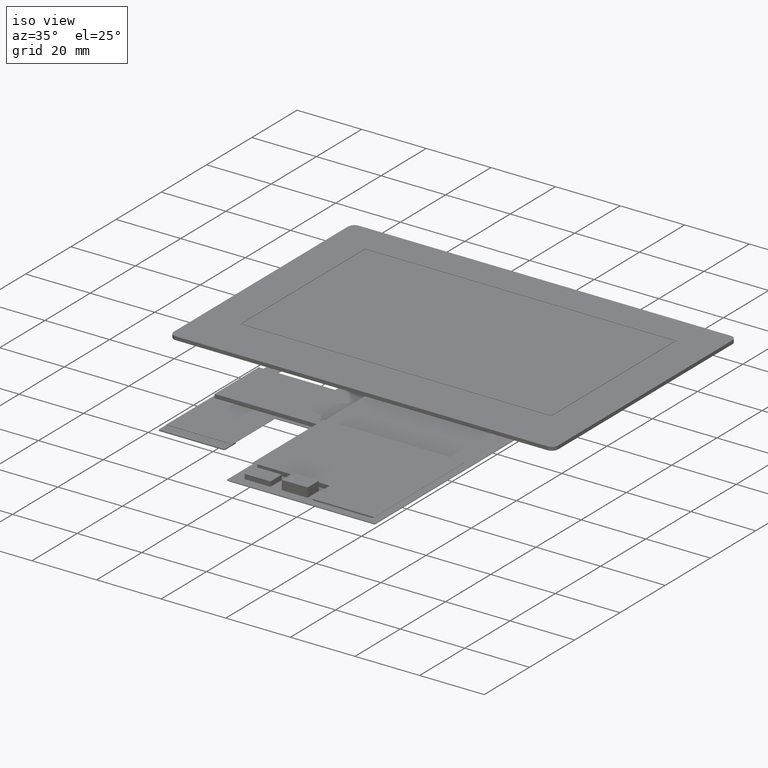
[diagram: clean part render]
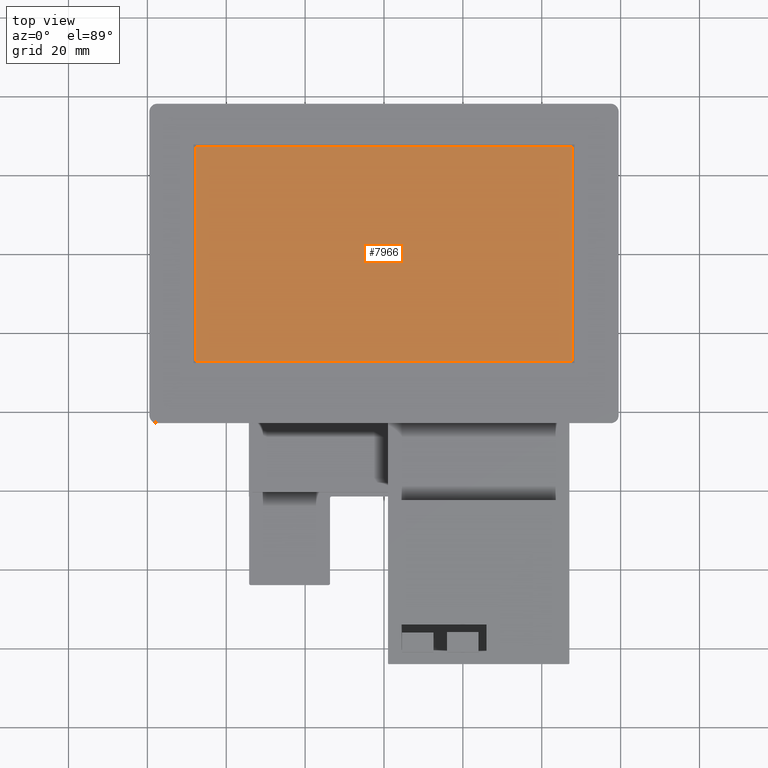
[diagram: tour spotlight — one face highlighted and labeled with its STEP entity id]
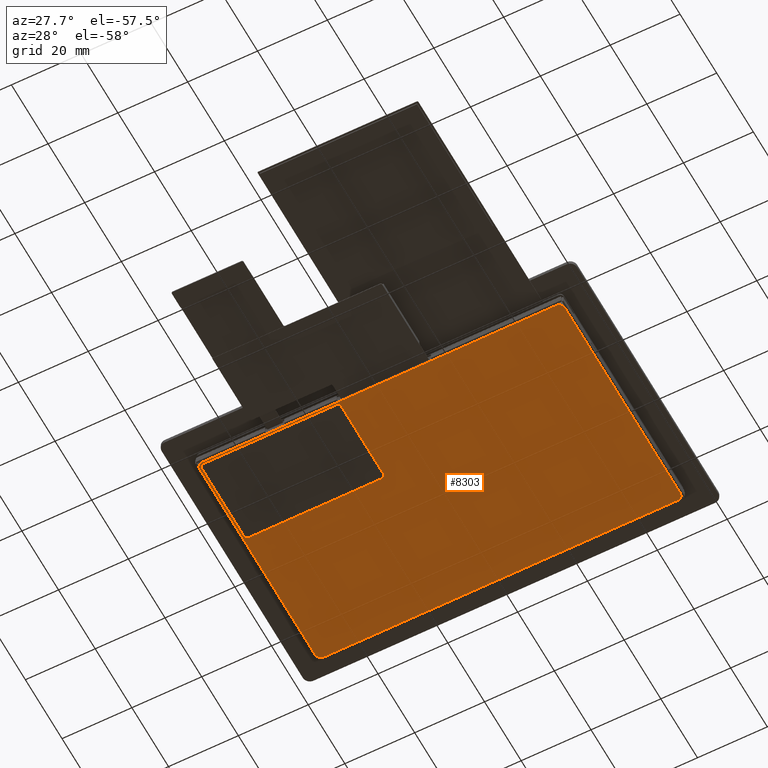
[diagram: tour spotlight — one face highlighted and labeled with its STEP entity id]
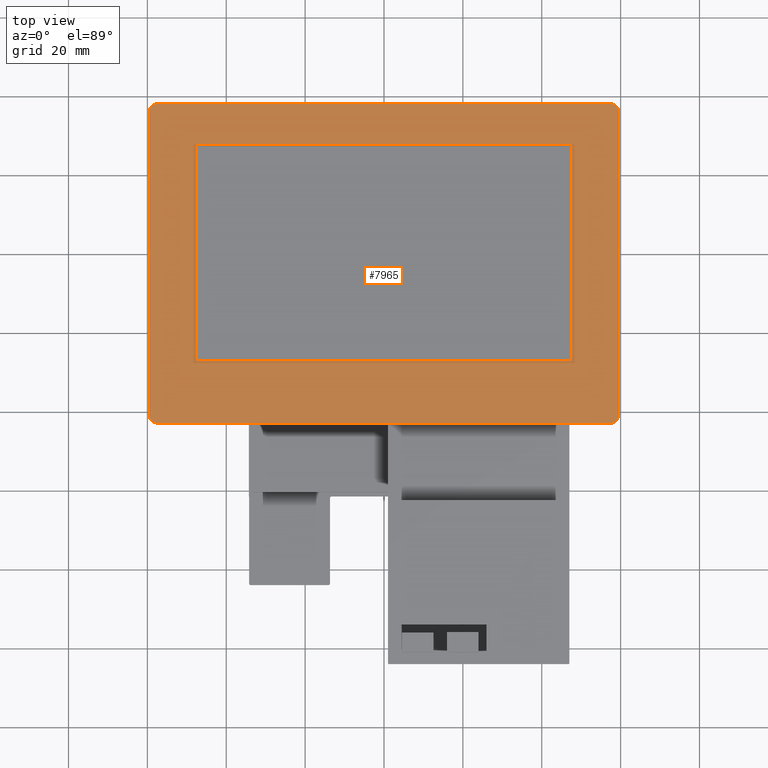
[diagram: tour spotlight — one face highlighted and labeled with its STEP entity id]
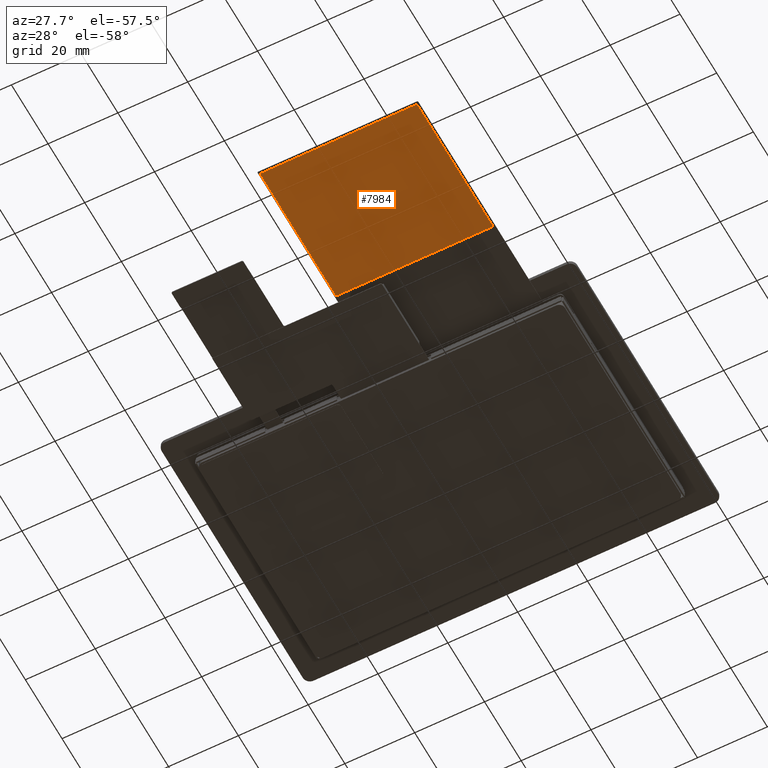
[diagram: tour spotlight — one face highlighted and labeled with its STEP entity id]
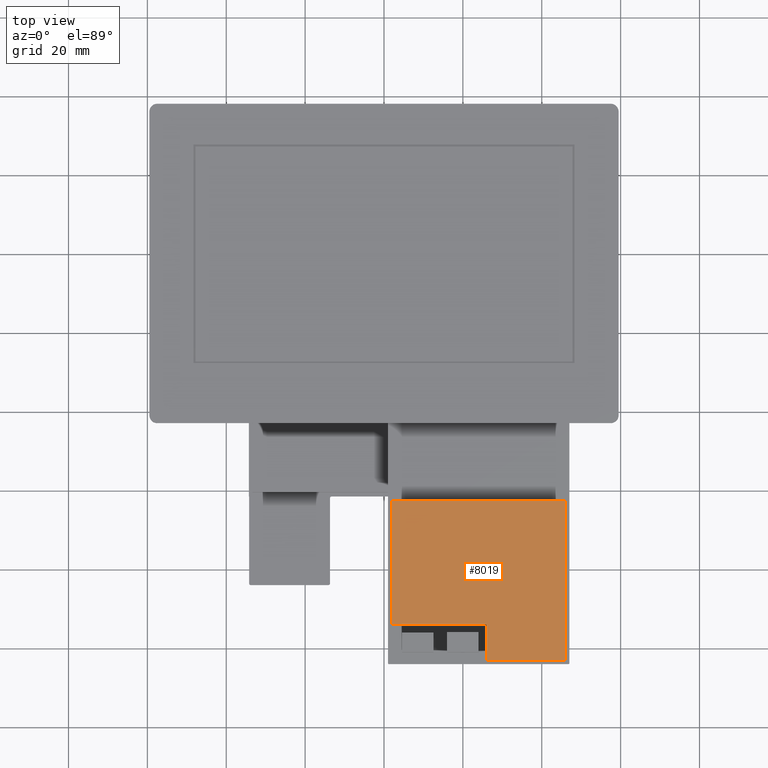
[diagram: tour spotlight — one face highlighted and labeled with its STEP entity id]
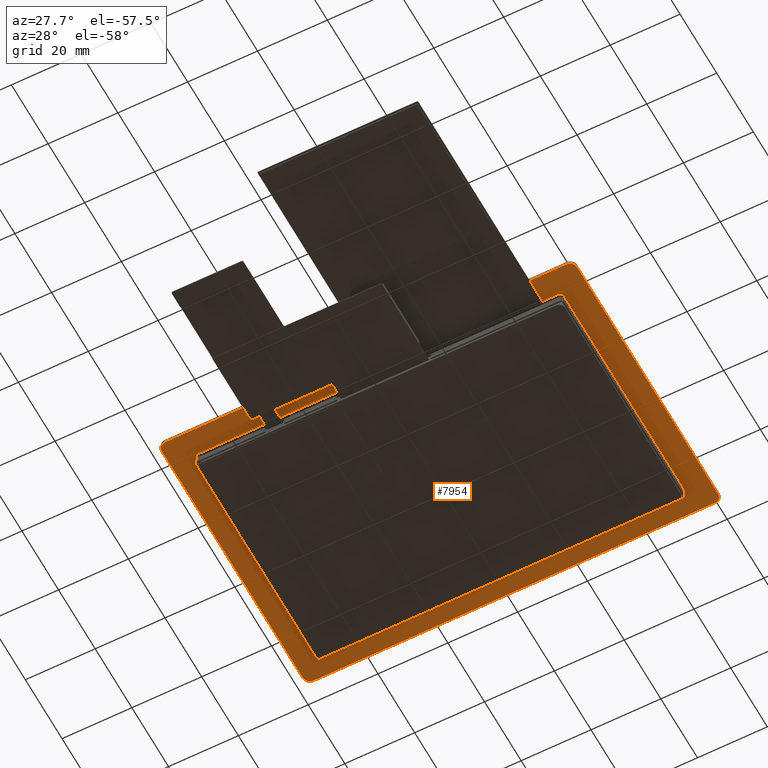
[diagram: tour spotlight — one face highlighted and labeled with its STEP entity id]
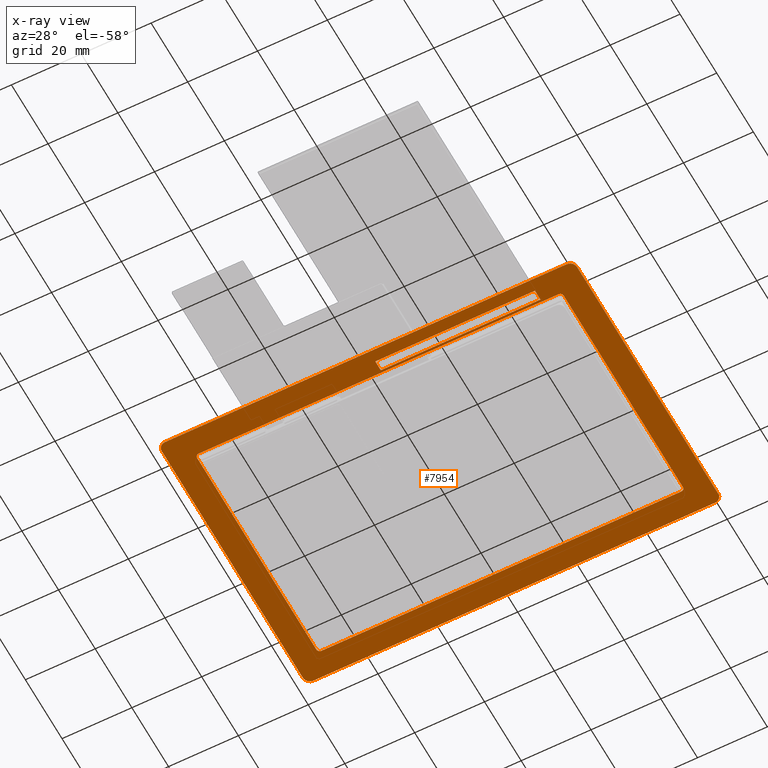
[diagram: x-ray of the same camera — body ghosted, this tour face saturated]
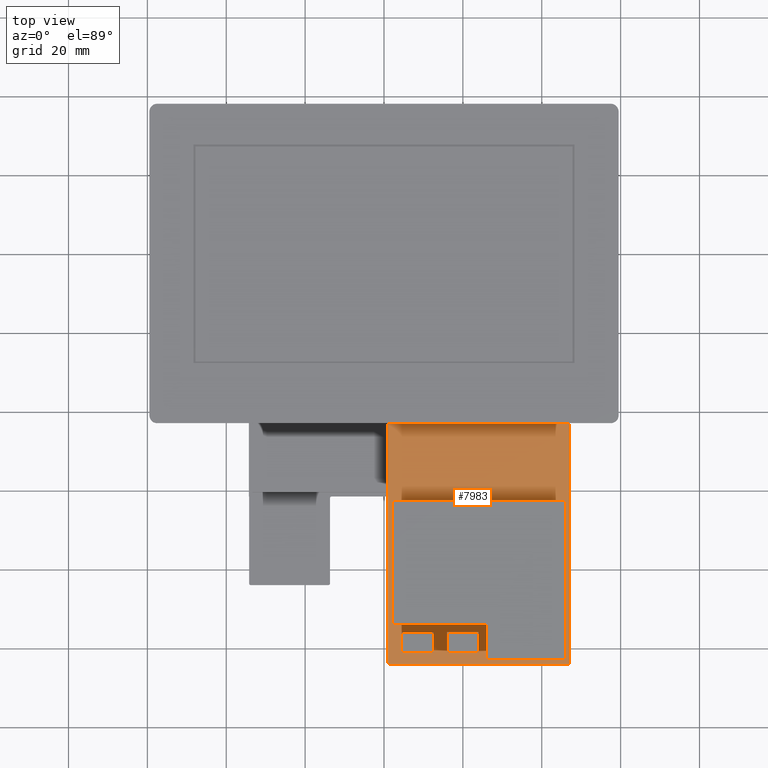
[diagram: tour spotlight — one face highlighted and labeled with its STEP entity id]
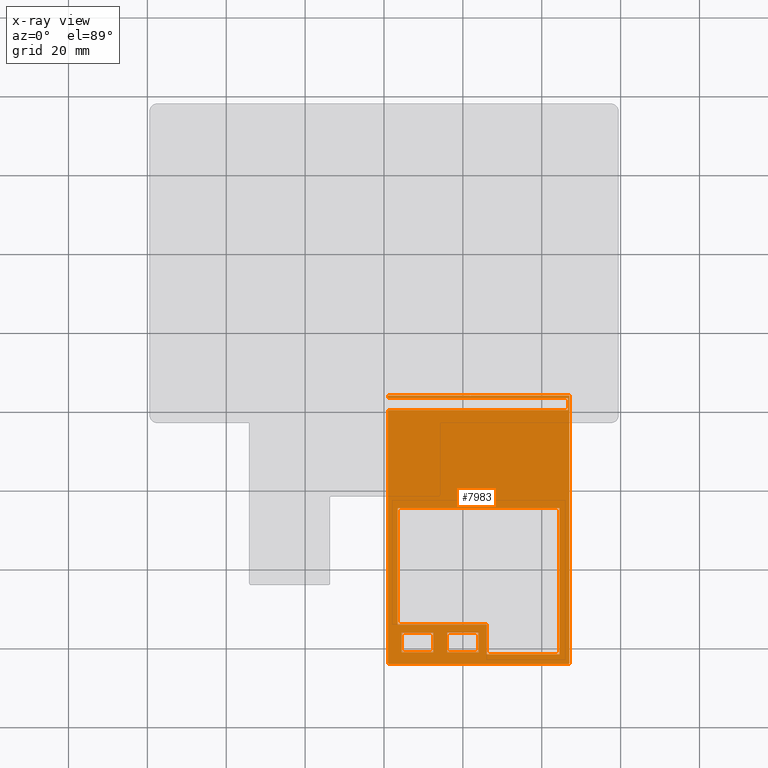
[diagram: x-ray of the same camera — body ghosted, this tour face saturated]
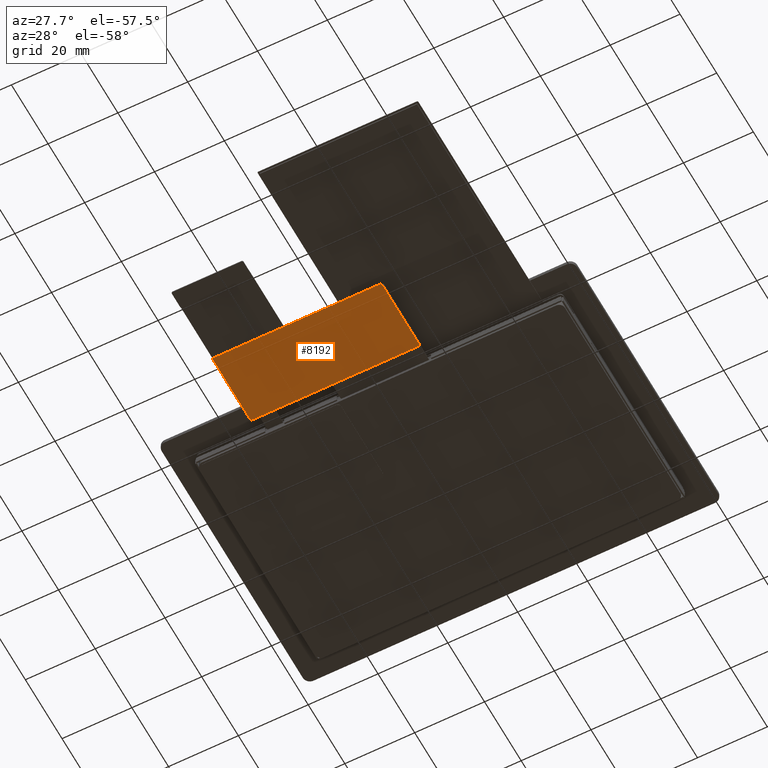
[diagram: tour spotlight — one face highlighted and labeled with its STEP entity id]
A machine part: a face-by-face anatomy tour. The part has 425 B-rep faces; the first image is the clean iso view, then the 8 largest visible faces are spotlighted one at a time (largest first), each with its STEP entity span.

Face 1 — top view, entity #7966. In plain terms, the highlighted planar face has unit normal (0, 0, 1).
Definition (entity closure, byte-faithful):
#108=PLANE('',#8442);
#485=FACE_OUTER_BOUND('',#916,.T.);
#916=EDGE_LOOP('',(#5729,#5730,#5731,#5732));
#1413=LINE('',#11184,#2491);
#1417=LINE('',#11192,#2495);
#1420=LINE('',#11198,#2498);
#1423=LINE('',#11203,#2501);
#2491=VECTOR('',#9071,10.);
#2495=VECTOR('',#9077,10.);
#2498=VECTOR('',#9082,10.);
#2501=VECTOR('',#9087,10.);
#3646=VERTEX_POINT('',#11182);
#3647=VERTEX_POINT('',#11183);
#3650=VERTEX_POINT('',#11191);
#3652=VERTEX_POINT('',#11197);
#4441=EDGE_CURVE('',#3646,#3647,#1413,.T.);
#4445=EDGE_CURVE('',#3650,#3646,#1417,.T.);
#4448=EDGE_CURVE('',#3652,#3650,#1420,.T.);
#4451=EDGE_CURVE('',#3647,#3652,#1423,.T.);
#5729=ORIENTED_EDGE('',*,*,#4441,.T.);
#5730=ORIENTED_EDGE('',*,*,#4451,.T.);
#5731=ORIENTED_EDGE('',*,*,#4448,.T.);
#5732=ORIENTED_EDGE('',*,*,#4445,.T.);
#7966=ADVANCED_FACE('',(#485),#108,.T.);
#8442=AXIS2_PLACEMENT_3D('',#11247,#9125,#9126);
#9071=DIRECTION('',(-1.08226954829212E-15,1.,0.));
#9077=DIRECTION('',(1.,1.22156980232288E-15,0.));
#9082=DIRECTION('',(1.24535776344088E-15,-1.,0.));
#9087=DIRECTION('',(-1.,-1.08226954829212E-15,0.));
#9125=DIRECTION('center_axis',(0.,0.,1.));
#9126=DIRECTION('ref_axis',(1.,1.08226954829212E-15,0.));
#11182=CARTESIAN_POINT('',(47.8199999999987,-27.2299999999985,0.));
#11183=CARTESIAN_POINT('',(47.8199999999986,27.2300000000015,0.));
#11184=CARTESIAN_POINT('',(47.8199999999987,-35.0499999999985,0.));
#11191=CARTESIAN_POINT('',(-47.8200000000013,-27.2299999999986,0.));
#11192=CARTESIAN_POINT('',(-23.9100000000013,-27.2299999999986,0.));
#11197=CARTESIAN_POINT('',(-47.8200000000014,27.2300000000014,0.));
#11198=CARTESIAN_POINT('',(-47.8200000000013,-7.81999999999858,0.));
#11203=CARTESIAN_POINT('',(23.9099999999986,27.2300000000015,0.));
#11247=CARTESIAN_POINT('Origin',(-1.28730359705287E-12,-42.8699999999985,
0.));

Face 2 — auxiliary view, entity #8303. In plain terms, the highlighted planar face has unit normal (0, 0, 1).
Definition (entity closure, byte-faithful):
#65=FACE_BOUND('',#1265,.T.);
#402=PLANE('',#8822);
#822=FACE_OUTER_BOUND('',#1264,.T.);
#1264=EDGE_LOOP('',(#7612,#7613,#7614,#7615,#7616,#7617,#7618,#7619));
#1265=EDGE_LOOP('',(#7620,#7621,#7622,#7623,#7624,#7625,#7626,#7627));
#1329=LINE('',#10981,#2407);
#1335=LINE('',#10996,#2413);
#1337=LINE('',#11002,#2415);
#1338=LINE('',#11004,#2416);
#2263=LINE('',#13976,#3341);
#2286=LINE('',#14044,#3364);
#2298=LINE('',#14079,#3376);
#2299=LINE('',#14083,#3377);
#2407=VECTOR('',#8901,10.);
#2413=VECTOR('',#8917,10.);
#2415=VECTOR('',#8925,10.);
#2416=VECTOR('',#8928,10.);
#3341=VECTOR('',#10639,101.36);
#3364=VECTOR('',#10704,63.);
#3376=VECTOR('',#10746,63.);
#3377=VECTOR('',#10749,101.36);
#3480=CIRCLE('',#8380,1.);
#3484=CIRCLE('',#8387,1.);
#3485=CIRCLE('',#8389,1.);
#3486=CIRCLE('',#8392,1.);
#3541=CIRCLE('',#8789,1.6);
#3556=CIRCLE('',#8823,1.6);
#3557=CIRCLE('',#8824,1.6);
#3558=CIRCLE('',#8825,1.6);
#3563=VERTEX_POINT('',#10960);
#3564=VERTEX_POINT('',#10962);
#3571=VERTEX_POINT('',#10980);
#3572=VERTEX_POINT('',#10984);
#3573=VERTEX_POINT('',#10988);
#3574=VERTEX_POINT('',#10990);
#3575=VERTEX_POINT('',#10994);
#3576=VERTEX_POINT('',#10998);
#4232=VERTEX_POINT('',#13973);
#4233=VERTEX_POINT('',#13975);
#4234=VERTEX_POINT('',#13979);
#4257=VERTEX_POINT('',#14043);
#4264=VERTEX_POINT('',#14076);
#4265=VERTEX_POINT('',#14078);
#4266=VERTEX_POINT('',#14080);
#4267=VERTEX_POINT('',#14082);
#4331=EDGE_CURVE('',#3564,#3563,#3480,.T.);
#4340=EDGE_CURVE('',#3571,#3564,#1329,.T.);
#4342=EDGE_CURVE('',#3572,#3571,#3484,.T.);
#4345=EDGE_CURVE('',#3574,#3573,#3485,.T.);
#4348=EDGE_CURVE('',#3573,#3575,#1335,.T.);
#4350=EDGE_CURVE('',#3575,#3576,#3486,.T.);
#4351=EDGE_CURVE('',#3576,#3572,#1337,.T.);
#4352=EDGE_CURVE('',#3563,#3574,#1338,.T.);
#5356=EDGE_CURVE('',#4232,#4233,#2263,.T.);
#5358=EDGE_CURVE('',#4234,#4233,#3541,.T.);
#5390=EDGE_CURVE('',#4234,#4257,#2286,.T.);
#5406=EDGE_CURVE('',#4232,#4264,#3556,.T.);
#5407=EDGE_CURVE('',#4265,#4264,#2298,.T.);
#5408=EDGE_CURVE('',#4265,#4266,#3557,.T.);
#5409=EDGE_CURVE('',#4267,#4266,#2299,.T.);
#5410=EDGE_CURVE('',#4267,#4257,#3558,.T.);
#7612=ORIENTED_EDGE('',*,*,#5358,.T.);
#7613=ORIENTED_EDGE('',*,*,#5356,.F.);
#7614=ORIENTED_EDGE('',*,*,#5406,.T.);
#7615=ORIENTED_EDGE('',*,*,#5407,.F.);
#7616=ORIENTED_EDGE('',*,*,#5408,.T.);
#7617=ORIENTED_EDGE('',*,*,#5409,.F.);
#7618=ORIENTED_EDGE('',*,*,#5410,.T.);
#7619=ORIENTED_EDGE('',*,*,#5390,.F.);
#7620=ORIENTED_EDGE('',*,*,#4345,.T.);
#7621=ORIENTED_EDGE('',*,*,#4348,.T.);
#7622=ORIENTED_EDGE('',*,*,#4350,.T.);
#7623=ORIENTED_EDGE('',*,*,#4351,.T.);
#7624=ORIENTED_EDGE('',*,*,#4342,.T.);
#7625=ORIENTED_EDGE('',*,*,#4340,.T.);
#7626=ORIENTED_EDGE('',*,*,#4331,.T.);
#7627=ORIENTED_EDGE('',*,*,#4352,.T.);
#8303=ADVANCED_FACE('',(#822,#65),#402,.F.);
#8380=AXIS2_PLACEMENT_3D('',#10963,#8884,#8885);
#8387=AXIS2_PLACEMENT_3D('',#10985,#8905,#8906);
#8389=AXIS2_PLACEMENT_3D('',#10991,#8911,#8912);
#8392=AXIS2_PLACEMENT_3D('',#11000,#8921,#8922);
#8789=AXIS2_PLACEMENT_3D('',#13980,#10643,#10644);
#8822=AXIS2_PLACEMENT_3D('',#14075,#10742,#10743);
#8823=AXIS2_PLACEMENT_3D('',#14077,#10744,#10745);
#8824=AXIS2_PLACEMENT_3D('',#14081,#10747,#10748);
#8825=AXIS2_PLACEMENT_3D('',#14084,#10750,#10751);
#8884=DIRECTION('center_axis',(0.,0.,1.));
#8885=DIRECTION('ref_axis',(-0.707106781186547,-0.707106781186548,0.));
#8901=DIRECTION('',(1.22108700651375E-15,-1.,0.));
#8905=DIRECTION('center_axis',(0.,0.,1.));
#8906=DIRECTION('ref_axis',(-0.707106781186548,0.707106781186547,0.));
#8911=DIRECTION('center_axis',(0.,0.,1.));
#8912=DIRECTION('ref_axis',(0.70710678118655,-0.707106781186545,0.));
#8917=DIRECTION('',(-5.99362112723661E-16,1.,0.));
#8921=DIRECTION('center_axis',(0.,0.,1.));
#8922=DIRECTION('ref_axis',(0.707106781186547,0.707106781186548,0.));
#8925=DIRECTION('',(-1.,-1.08786024355873E-15,0.));
#8928=DIRECTION('',(1.,8.65815638633699E-16,0.));
#10639=DIRECTION('',(-1.,-8.65815638633699E-16,0.));
#10643=DIRECTION('center_axis',(0.,0.,-1.));
#10644=DIRECTION('ref_axis',(-1.,-8.65815638633699E-16,0.));
#10704=DIRECTION('',(8.65815638633699E-16,-1.,0.));
#10742=DIRECTION('center_axis',(0.,0.,1.));
#10743=DIRECTION('ref_axis',(1.,8.65815638633699E-16,0.));
#10744=DIRECTION('center_axis',(0.,0.,-1.));
#10745=DIRECTION('ref_axis',(-8.65815638633699E-16,1.,0.));
#10746=DIRECTION('',(-8.65815638633699E-16,1.,0.));
#10747=DIRECTION('center_axis',(0.,0.,-1.));
#10748=DIRECTION('ref_axis',(1.,8.65815638633699E-16,0.));
#10749=DIRECTION('',(1.,8.65815638633699E-16,0.));
#10750=DIRECTION('center_axis',(0.,0.,-1.));
#10751=DIRECTION('ref_axis',(8.65815638633699E-16,-1.,0.));
#10960=CARTESIAN_POINT('',(-50.7000000000015,-34.9219999999991,-5.13999999999999));
#10962=CARTESIAN_POINT('',(-51.7000000000015,-33.9219999999991,-5.13999999999999));
#10963=CARTESIAN_POINT('Origin',(-50.7000000000015,-33.9219999999991,-5.13999999999999));
#10980=CARTESIAN_POINT('',(-51.7000000000015,-10.9219999999991,-5.13999999999999));
#10981=CARTESIAN_POINT('',(-51.7000000000015,-6.12199999999911,-5.13999999999999));
#10984=CARTESIAN_POINT('',(-50.7000000000015,-9.9219999999991,-5.13999999999999));
#10985=CARTESIAN_POINT('Origin',(-50.7000000000015,-10.9219999999991,-5.13999999999999));
#10988=CARTESIAN_POINT('',(-11.7000000000015,-33.9219999999991,-5.13999999999999));
#10990=CARTESIAN_POINT('',(-12.7000000000015,-34.9219999999991,-5.13999999999999));
#10991=CARTESIAN_POINT('Origin',(-12.7000000000015,-33.9219999999991,-5.13999999999999));
#10994=CARTESIAN_POINT('',(-11.7000000000015,-10.9219999999991,-5.13999999999999));
#10996=CARTESIAN_POINT('',(-11.7000000000015,-12.3719999999991,-5.13999999999999));
#10998=CARTESIAN_POINT('',(-12.7000000000015,-9.92199999999906,-5.13999999999999));
#11000=CARTESIAN_POINT('Origin',(-12.7000000000015,-10.9219999999991,-5.13999999999999));
#11002=CARTESIAN_POINT('',(-15.8600000000017,-9.92199999999906,-5.13999999999999));
#11004=CARTESIAN_POINT('',(-25.8600000000016,-34.9219999999991,-5.13999999999999));
#13973=CARTESIAN_POINT('',(50.6599999999983,30.778000000001,-5.13999999999999));
#13975=CARTESIAN_POINT('',(-50.7000000000018,30.778000000001,-5.13999999999999));
#13976=CARTESIAN_POINT('',(50.6599999999983,30.778000000001,-5.13999999999999));
#13979=CARTESIAN_POINT('',(-52.3000000000017,29.178000000001,-5.13999999999999));
#13980=CARTESIAN_POINT('Origin',(-50.7000000000018,29.178000000001,-5.13999999999999));
#14043=CARTESIAN_POINT('',(-52.3000000000016,-33.8219999999991,-5.13999999999999));
#14044=CARTESIAN_POINT('',(-52.3000000000017,29.178000000001,-5.13999999999999));
#14075=CARTESIAN_POINT('Origin',(-0.0200000000018008,-2.32199999999906,
-5.13999999999999));
#14076=CARTESIAN_POINT('',(52.2599999999983,29.178000000001,-5.13999999999999));
#14077=CARTESIAN_POINT('Origin',(50.6599999999983,29.178000000001,-5.13999999999999));
#14078=CARTESIAN_POINT('',(52.2599999999983,-33.8219999999991,-5.13999999999999));
#14079=CARTESIAN_POINT('',(52.2599999999983,-33.8219999999991,-5.13999999999999));
#14080=CARTESIAN_POINT('',(50.6599999999983,-35.4219999999991,-5.13999999999999));
#14081=CARTESIAN_POINT('Origin',(50.6599999999983,-33.8219999999991,-5.13999999999999));
#14082=CARTESIAN_POINT('',(-50.7000000000016,-35.4219999999991,-5.13999999999999));
#14083=CARTESIAN_POINT('',(-50.7000000000016,-35.4219999999991,-5.13999999999999));
#14084=CARTESIAN_POINT('Origin',(-50.7000000000016,-33.8219999999991,-5.13999999999999));

Face 3 — top view, entity #7965. In plain terms, the highlighted planar face has unit normal (0, 0, 1).
Definition (entity closure, byte-faithful):
#53=FACE_BOUND('',#915,.T.);
#107=PLANE('',#8437);
#484=FACE_OUTER_BOUND('',#914,.T.);
#914=EDGE_LOOP('',(#5717,#5718,#5719,#5720,#5721,#5722,#5723,#5724));
#915=EDGE_LOOP('',(#5725,#5726,#5727,#5728));
#1425=LINE('',#11208,#2503);
#1429=LINE('',#11216,#2507);
#1432=LINE('',#11222,#2510);
#1435=LINE('',#11227,#2513);
#1437=LINE('',#11235,#2515);
#1438=LINE('',#11239,#2516);
#1439=LINE('',#11243,#2517);
#1440=LINE('',#11246,#2518);
#2503=VECTOR('',#9091,10.);
#2507=VECTOR('',#9097,10.);
#2510=VECTOR('',#9102,10.);
#2513=VECTOR('',#9107,10.);
#2515=VECTOR('',#9115,77.);
#2516=VECTOR('',#9118,115.);
#2517=VECTOR('',#9121,77.);
#2518=VECTOR('',#9124,115.);
#3501=CIRCLE('',#8438,2.);
#3502=CIRCLE('',#8439,2.);
#3503=CIRCLE('',#8440,2.);
#3504=CIRCLE('',#8441,2.);
#3654=VERTEX_POINT('',#11206);
#3655=VERTEX_POINT('',#11207);
#3658=VERTEX_POINT('',#11215);
#3660=VERTEX_POINT('',#11221);
#3662=VERTEX_POINT('',#11231);
#3663=VERTEX_POINT('',#11232);
#3664=VERTEX_POINT('',#11234);
#3665=VERTEX_POINT('',#11236);
#3666=VERTEX_POINT('',#11238);
#3667=VERTEX_POINT('',#11240);
#3668=VERTEX_POINT('',#11242);
#3669=VERTEX_POINT('',#11244);
#4453=EDGE_CURVE('',#3654,#3655,#1425,.T.);
#4457=EDGE_CURVE('',#3658,#3654,#1429,.T.);
#4460=EDGE_CURVE('',#3660,#3658,#1432,.T.);
#4463=EDGE_CURVE('',#3655,#3660,#1435,.T.);
#4465=EDGE_CURVE('',#3662,#3663,#3501,.T.);
#4466=EDGE_CURVE('',#3663,#3664,#1437,.T.);
#4467=EDGE_CURVE('',#3664,#3665,#3502,.T.);
#4468=EDGE_CURVE('',#3665,#3666,#1438,.T.);
#4469=EDGE_CURVE('',#3666,#3667,#3503,.T.);
#4470=EDGE_CURVE('',#3667,#3668,#1439,.T.);
#4471=EDGE_CURVE('',#3668,#3669,#3504,.T.);
#4472=EDGE_CURVE('',#3669,#3662,#1440,.T.);
#5717=ORIENTED_EDGE('',*,*,#4465,.T.);
#5718=ORIENTED_EDGE('',*,*,#4466,.T.);
#5719=ORIENTED_EDGE('',*,*,#4467,.T.);
#5720=ORIENTED_EDGE('',*,*,#4468,.T.);
#5721=ORIENTED_EDGE('',*,*,#4469,.T.);
#5722=ORIENTED_EDGE('',*,*,#4470,.T.);
#5723=ORIENTED_EDGE('',*,*,#4471,.T.);
#5724=ORIENTED_EDGE('',*,*,#4472,.T.);
#5725=ORIENTED_EDGE('',*,*,#4453,.T.);
#5726=ORIENTED_EDGE('',*,*,#4463,.T.);
#5727=ORIENTED_EDGE('',*,*,#4460,.T.);
#5728=ORIENTED_EDGE('',*,*,#4457,.T.);
#7965=ADVANCED_FACE('',(#484,#53),#107,.T.);
#8437=AXIS2_PLACEMENT_3D('',#11230,#9111,#9112);
#8438=AXIS2_PLACEMENT_3D('',#11233,#9113,#9114);
#8439=AXIS2_PLACEMENT_3D('',#11237,#9116,#9117);
#8440=AXIS2_PLACEMENT_3D('',#11241,#9119,#9120);
#8441=AXIS2_PLACEMENT_3D('',#11245,#9122,#9123);
#9091=DIRECTION('',(1.08226954829212E-15,-1.,0.));
#9097=DIRECTION('',(1.,1.08226954829212E-15,0.));
#9102=DIRECTION('',(-1.28245400999879E-15,1.,0.));
#9107=DIRECTION('',(-1.,-1.22012836757505E-15,0.));
#9111=DIRECTION('center_axis',(0.,0.,1.));
#9112=DIRECTION('ref_axis',(1.,1.08226954829212E-15,0.));
#9113=DIRECTION('center_axis',(0.,0.,1.));
#9114=DIRECTION('ref_axis',(1.,1.08226954829212E-15,0.));
#9115=DIRECTION('',(1.08226954829212E-15,-1.,0.));
#9116=DIRECTION('center_axis',(0.,0.,1.));
#9117=DIRECTION('ref_axis',(1.,1.08226954829212E-15,0.));
#9118=DIRECTION('',(1.,1.08226954829212E-15,0.));
#9119=DIRECTION('center_axis',(0.,0.,1.));
#9120=DIRECTION('ref_axis',(1.,1.08226954829212E-15,0.));
#9121=DIRECTION('',(-1.08226954829212E-15,1.,0.));
#9122=DIRECTION('center_axis',(0.,0.,1.));
#9123=DIRECTION('ref_axis',(1.,1.08226954829212E-15,0.));
#9124=DIRECTION('',(-1.,-1.08226954829212E-15,0.));
#11206=CARTESIAN_POINT('',(48.3199999999987,27.7300000000015,0.));
#11207=CARTESIAN_POINT('',(48.3199999999987,-27.7299999999985,0.));
#11208=CARTESIAN_POINT('',(48.3199999999987,-7.56999999999847,0.));
#11215=CARTESIAN_POINT('',(-48.3200000000014,27.7300000000014,0.));
#11216=CARTESIAN_POINT('',(-24.1600000000014,27.7300000000015,0.));
#11221=CARTESIAN_POINT('',(-48.3200000000013,-27.7299999999986,0.));
#11222=CARTESIAN_POINT('',(-48.3200000000013,-35.2999999999986,0.));
#11227=CARTESIAN_POINT('',(24.1599999999987,-27.7299999999985,0.));
#11230=CARTESIAN_POINT('Origin',(-1.28730359705287E-12,-42.8699999999985,
0.));
#11231=CARTESIAN_POINT('',(-57.5000000000014,38.1300000000014,0.));
#11232=CARTESIAN_POINT('',(-59.5000000000014,36.1300000000014,0.));
#11233=CARTESIAN_POINT('Origin',(-57.5000000000014,36.1300000000014,0.));
#11234=CARTESIAN_POINT('',(-59.5000000000013,-40.8699999999986,0.));
#11235=CARTESIAN_POINT('',(-59.5000000000014,36.1300000000014,0.));
#11236=CARTESIAN_POINT('',(-57.5000000000013,-42.8699999999986,0.));
#11237=CARTESIAN_POINT('Origin',(-57.5000000000013,-40.8699999999986,0.));
#11238=CARTESIAN_POINT('',(57.4999999999987,-42.8699999999985,0.));
#11239=CARTESIAN_POINT('',(-57.5000000000013,-42.8699999999986,0.));
#11240=CARTESIAN_POINT('',(59.4999999999987,-40.8699999999985,0.));
#11241=CARTESIAN_POINT('Origin',(57.4999999999987,-40.8699999999985,0.));
#11242=CARTESIAN_POINT('',(59.4999999999986,36.1300000000015,0.));
#11243=CARTESIAN_POINT('',(59.4999999999987,-40.8699999999985,0.));
#11244=CARTESIAN_POINT('',(57.4999999999986,38.1300000000015,0.));
#11245=CARTESIAN_POINT('Origin',(57.4999999999986,36.1300000000015,0.));
#11246=CARTESIAN_POINT('',(57.4999999999986,38.1300000000015,0.));

Face 4 — auxiliary view, entity #7984. In plain terms, the highlighted planar face has unit normal (0, 0, -1).
Definition (entity closure, byte-faithful):
#118=PLANE('',#8463);
#503=FACE_OUTER_BOUND('',#937,.T.);
#937=EDGE_LOOP('',(#5838,#5839,#5840,#5841));
#1480=LINE('',#11333,#2558);
#1481=LINE('',#11335,#2559);
#1482=LINE('',#11337,#2560);
#1483=LINE('',#11338,#2561);
#2558=VECTOR('',#9208,45.);
#2559=VECTOR('',#9209,41.5);
#2560=VECTOR('',#9210,45.);
#2561=VECTOR('',#9211,41.5);
#3693=VERTEX_POINT('',#11331);
#3694=VERTEX_POINT('',#11332);
#3695=VERTEX_POINT('',#11334);
#3696=VERTEX_POINT('',#11336);
#4515=EDGE_CURVE('',#3693,#3694,#1480,.T.);
#4516=EDGE_CURVE('',#3694,#3695,#1481,.T.);
#4517=EDGE_CURVE('',#3695,#3696,#1482,.T.);
#4518=EDGE_CURVE('',#3696,#3693,#1483,.T.);
#5838=ORIENTED_EDGE('',*,*,#4515,.T.);
#5839=ORIENTED_EDGE('',*,*,#4516,.T.);
#5840=ORIENTED_EDGE('',*,*,#4517,.T.);
#5841=ORIENTED_EDGE('',*,*,#4518,.T.);
#7984=ADVANCED_FACE('',(#503),#118,.T.);
#8463=AXIS2_PLACEMENT_3D('',#11330,#9206,#9207);
#9206=DIRECTION('center_axis',(0.,0.,-1.));
#9207=DIRECTION('ref_axis',(-1.,-1.08226954829212E-15,0.));
#9208=DIRECTION('',(1.,1.08226954829212E-15,0.));
#9209=DIRECTION('',(1.08226954829212E-15,-1.,0.));
#9210=DIRECTION('',(-1.,-1.08226954829212E-15,0.));
#9211=DIRECTION('',(-1.08226954829212E-15,1.,0.));
#11330=CARTESIAN_POINT('Origin',(24.0000000000037,-103.469999999996,-1.70999999999999));
#11331=CARTESIAN_POINT('',(1.50000000000368,-61.9699999999961,-1.70999999999999));
#11332=CARTESIAN_POINT('',(46.5000000000037,-61.969999999996,-1.70999999999999));
#11333=CARTESIAN_POINT('',(1.50000000000368,-61.9699999999961,-1.70999999999999));
#11334=CARTESIAN_POINT('',(46.5000000000037,-103.469999999996,-1.70999999999999));
#11335=CARTESIAN_POINT('',(46.5000000000037,-61.969999999996,-1.70999999999999));
#11336=CARTESIAN_POINT('',(1.50000000000373,-103.469999999996,-1.70999999999999));
#11337=CARTESIAN_POINT('',(46.5000000000037,-103.469999999996,-1.70999999999999));
#11338=CARTESIAN_POINT('',(1.50000000000373,-103.469999999996,-1.70999999999999));

Face 5 — top view, entity #8019. In plain terms, the highlighted planar face has unit normal (0, 0, 1).
Definition (entity closure, byte-faithful):
#150=PLANE('',#8501);
#538=FACE_OUTER_BOUND('',#973,.T.);
#973=EDGE_LOOP('',(#5996,#5997,#5998,#5999,#6000,#6001));
#1530=LINE('',#11444,#2608);
#1534=LINE('',#11450,#2612);
#1536=LINE('',#11454,#2614);
#1538=LINE('',#11458,#2616);
#1540=LINE('',#11462,#2618);
#1541=LINE('',#11464,#2619);
#2608=VECTOR('',#9322,9.);
#2612=VECTOR('',#9328,20.);
#2614=VECTOR('',#9332,40.5);
#2616=VECTOR('',#9336,44.);
#2618=VECTOR('',#9340,31.5);
#2619=VECTOR('',#9343,24.);
#3722=VERTEX_POINT('',#11442);
#3723=VERTEX_POINT('',#11443);
#3724=VERTEX_POINT('',#11448);
#3725=VERTEX_POINT('',#11452);
#3726=VERTEX_POINT('',#11456);
#3727=VERTEX_POINT('',#11460);
#4568=EDGE_CURVE('',#3722,#3723,#1530,.T.);
#4572=EDGE_CURVE('',#3723,#3724,#1534,.T.);
#4574=EDGE_CURVE('',#3724,#3725,#1536,.T.);
#4576=EDGE_CURVE('',#3725,#3726,#1538,.T.);
#4578=EDGE_CURVE('',#3726,#3727,#1540,.T.);
#4579=EDGE_CURVE('',#3727,#3722,#1541,.T.);
#5996=ORIENTED_EDGE('',*,*,#4568,.T.);
#5997=ORIENTED_EDGE('',*,*,#4572,.T.);
#5998=ORIENTED_EDGE('',*,*,#4574,.T.);
#5999=ORIENTED_EDGE('',*,*,#4576,.T.);
#6000=ORIENTED_EDGE('',*,*,#4578,.T.);
#6001=ORIENTED_EDGE('',*,*,#4579,.T.);
#8019=ADVANCED_FACE('',(#538),#150,.T.);
#8501=AXIS2_PLACEMENT_3D('',#11465,#9344,#9345);
#9322=DIRECTION('',(1.08226954829212E-15,-1.,0.));
#9328=DIRECTION('',(1.,1.08226954829212E-15,0.));
#9332=DIRECTION('',(-1.08226954829212E-15,1.,0.));
#9336=DIRECTION('',(-1.,-1.08226954829212E-15,0.));
#9340=DIRECTION('',(1.08226954829212E-15,-1.,0.));
#9343=DIRECTION('',(1.,1.08226954829212E-15,0.));
#9344=DIRECTION('center_axis',(0.,0.,1.));
#9345=DIRECTION('ref_axis',(1.,1.08226954829212E-15,0.));
#11442=CARTESIAN_POINT('',(26.0000000000037,-93.969999999996,0.0500000000000078));
#11443=CARTESIAN_POINT('',(26.0000000000037,-102.969999999996,0.0500000000000078));
#11444=CARTESIAN_POINT('',(26.0000000000037,-93.969999999996,0.0500000000000078));
#11448=CARTESIAN_POINT('',(46.0000000000037,-102.969999999996,0.0500000000000078));
#11450=CARTESIAN_POINT('',(26.0000000000037,-102.969999999996,0.0500000000000078));
#11452=CARTESIAN_POINT('',(46.0000000000037,-62.469999999996,0.0500000000000078));
#11454=CARTESIAN_POINT('',(46.0000000000037,-102.969999999996,0.0500000000000078));
#11456=CARTESIAN_POINT('',(2.00000000000368,-62.4699999999961,0.0500000000000078));
#11458=CARTESIAN_POINT('',(46.0000000000037,-62.469999999996,0.0500000000000078));
#11460=CARTESIAN_POINT('',(2.00000000000372,-93.9699999999961,0.0500000000000078));
#11462=CARTESIAN_POINT('',(2.00000000000368,-62.4699999999961,0.0500000000000078));
#11464=CARTESIAN_POINT('',(2.00000000000372,-93.9699999999961,0.0500000000000078));
#11465=CARTESIAN_POINT('Origin',(24.0000000000037,-102.969999999996,0.0500000000000078));

Face 6 — auxiliary view, entity #7954. An x-ray twin of the same camera follows (body ghosted, this face saturated) — the face is partly hidden behind the body. In plain terms, the highlighted planar face has unit normal (0, 0, 1).
Definition (entity closure, byte-faithful):
#48=FACE_BOUND('',#899,.T.);
#49=FACE_BOUND('',#900,.T.);
#96=PLANE('',#8418);
#473=FACE_OUTER_BOUND('',#898,.T.);
#898=EDGE_LOOP('',(#5645,#5646,#5647,#5648,#5649,#5650,#5651,#5652));
#899=EDGE_LOOP('',(#5653,#5654,#5655,#5656,#5657,#5658,#5659,#5660));
#900=EDGE_LOOP('',(#5661,#5662,#5663,#5664));
#1391=LINE('',#11124,#2469);
#1392=LINE('',#11128,#2470);
#1393=LINE('',#11132,#2471);
#1394=LINE('',#11136,#2472);
#1395=LINE('',#11142,#2473);
#1396=LINE('',#11146,#2474);
#1397=LINE('',#11150,#2475);
#1398=LINE('',#11153,#2476);
#1399=LINE('',#11156,#2477);
#1400=LINE('',#11158,#2478);
#1401=LINE('',#11160,#2479);
#1402=LINE('',#11161,#2480);
#2469=VECTOR('',#9029,77.);
#2470=VECTOR('',#9032,115.);
#2471=VECTOR('',#9035,77.);
#2472=VECTOR('',#9038,115.);
#2473=VECTOR('',#9043,65.);
#2474=VECTOR('',#9046,103.);
#2475=VECTOR('',#9049,65.);
#2476=VECTOR('',#9052,103.);
#2477=VECTOR('',#9053,3.);
#2478=VECTOR('',#9054,45.7);
#2479=VECTOR('',#9055,3.);
#2480=VECTOR('',#9056,45.7);
#3493=CIRCLE('',#8419,2.);
#3494=CIRCLE('',#8420,2.);
#3495=CIRCLE('',#8421,2.);
#3496=CIRCLE('',#8422,2.);
#3497=CIRCLE('',#8423,1.);
#3498=CIRCLE('',#8424,1.);
#3499=CIRCLE('',#8425,1.);
#3500=CIRCLE('',#8426,1.);
#3618=VERTEX_POINT('',#11122);
#3619=VERTEX_POINT('',#11123);
#3620=VERTEX_POINT('',#11125);
#3621=VERTEX_POINT('',#11127);
#3622=VERTEX_POINT('',#11129);
#3623=VERTEX_POINT('',#11131);
#3624=VERTEX_POINT('',#11133);
#3625=VERTEX_POINT('',#11135);
#3626=VERTEX_POINT('',#11138);
#3627=VERTEX_POINT('',#11139);
#3628=VERTEX_POINT('',#11141);
#3629=VERTEX_POINT('',#11143);
#3630=VERTEX_POINT('',#11145);
#3631=VERTEX_POINT('',#11147);
#3632=VERTEX_POINT('',#11149);
#3633=VERTEX_POINT('',#11151);
#3634=VERTEX_POINT('',#11154);
#3635=VERTEX_POINT('',#11155);
#3636=VERTEX_POINT('',#11157);
#3637=VERTEX_POINT('',#11159);
#4411=EDGE_CURVE('',#3618,#3619,#1391,.T.);
#4412=EDGE_CURVE('',#3620,#3619,#3493,.T.);
#4413=EDGE_CURVE('',#3620,#3621,#1392,.T.);
#4414=EDGE_CURVE('',#3622,#3621,#3494,.T.);
#4415=EDGE_CURVE('',#3622,#3623,#1393,.T.);
#4416=EDGE_CURVE('',#3624,#3623,#3495,.T.);
#4417=EDGE_CURVE('',#3624,#3625,#1394,.T.);
#4418=EDGE_CURVE('',#3618,#3625,#3496,.T.);
#4419=EDGE_CURVE('',#3626,#3627,#3497,.T.);
#4420=EDGE_CURVE('',#3628,#3626,#1395,.T.);
#4421=EDGE_CURVE('',#3629,#3628,#3498,.T.);
#4422=EDGE_CURVE('',#3630,#3629,#1396,.T.);
#4423=EDGE_CURVE('',#3631,#3630,#3499,.T.);
#4424=EDGE_CURVE('',#3632,#3631,#1397,.T.);
#4425=EDGE_CURVE('',#3633,#3632,#3500,.T.);
#4426=EDGE_CURVE('',#3627,#3633,#1398,.T.);
#4427=EDGE_CURVE('',#3634,#3635,#1399,.T.);
#4428=EDGE_CURVE('',#3636,#3634,#1400,.T.);
#4429=EDGE_CURVE('',#3637,#3636,#1401,.T.);
#4430=EDGE_CURVE('',#3635,#3637,#1402,.T.);
#5645=ORIENTED_EDGE('',*,*,#4411,.T.);
#5646=ORIENTED_EDGE('',*,*,#4412,.F.);
#5647=ORIENTED_EDGE('',*,*,#4413,.T.);
#5648=ORIENTED_EDGE('',*,*,#4414,.F.);
#5649=ORIENTED_EDGE('',*,*,#4415,.T.);
#5650=ORIENTED_EDGE('',*,*,#4416,.F.);
#5651=ORIENTED_EDGE('',*,*,#4417,.T.);
#5652=ORIENTED_EDGE('',*,*,#4418,.F.);
#5653=ORIENTED_EDGE('',*,*,#4419,.F.);
#5654=ORIENTED_EDGE('',*,*,#4420,.F.);
#5655=ORIENTED_EDGE('',*,*,#4421,.F.);
#5656=ORIENTED_EDGE('',*,*,#4422,.F.);
#5657=ORIENTED_EDGE('',*,*,#4423,.F.);
#5658=ORIENTED_EDGE('',*,*,#4424,.F.);
#5659=ORIENTED_EDGE('',*,*,#4425,.F.);
#5660=ORIENTED_EDGE('',*,*,#4426,.F.);
#5661=ORIENTED_EDGE('',*,*,#4427,.F.);
#5662=ORIENTED_EDGE('',*,*,#4428,.F.);
#5663=ORIENTED_EDGE('',*,*,#4429,.F.);
#5664=ORIENTED_EDGE('',*,*,#4430,.F.);
#7954=ADVANCED_FACE('',(#473,#48,#49),#96,.F.);
#8418=AXIS2_PLACEMENT_3D('',#11121,#9027,#9028);
#8419=AXIS2_PLACEMENT_3D('',#11126,#9030,#9031);
#8420=AXIS2_PLACEMENT_3D('',#11130,#9033,#9034);
#8421=AXIS2_PLACEMENT_3D('',#11134,#9036,#9037);
#8422=AXIS2_PLACEMENT_3D('',#11137,#9039,#9040);
#8423=AXIS2_PLACEMENT_3D('',#11140,#9041,#9042);
#8424=AXIS2_PLACEMENT_3D('',#11144,#9044,#9045);
#8425=AXIS2_PLACEMENT_3D('',#11148,#9047,#9048);
#8426=AXIS2_PLACEMENT_3D('',#11152,#9050,#9051);
#9027=DIRECTION('center_axis',(0.,0.,1.));
#9028=DIRECTION('ref_axis',(1.,1.08226954829212E-15,0.));
#9029=DIRECTION('',(-1.08226954829212E-15,1.,0.));
#9030=DIRECTION('center_axis',(0.,0.,1.));
#9031=DIRECTION('ref_axis',(1.,1.08226954829212E-15,0.));
#9032=DIRECTION('',(1.,1.08226954829212E-15,0.));
#9033=DIRECTION('center_axis',(0.,0.,1.));
#9034=DIRECTION('ref_axis',(1.,1.08226954829212E-15,0.));
#9035=DIRECTION('',(1.08226954829212E-15,-1.,0.));
#9036=DIRECTION('center_axis',(0.,0.,1.));
#9037=DIRECTION('ref_axis',(1.,1.08226954829212E-15,0.));
#9038=DIRECTION('',(-1.,-1.08226954829212E-15,0.));
#9039=DIRECTION('center_axis',(0.,0.,1.));
#9040=DIRECTION('ref_axis',(1.,1.08226954829212E-15,0.));
#9041=DIRECTION('center_axis',(6.98296267768627E-15,4.96244914950291E-26,
-1.));
#9042=DIRECTION('ref_axis',(-1.,-1.08226955616811E-15,-6.98296267768627E-15));
#9043=DIRECTION('',(-1.08226954829212E-15,1.,0.));
#9044=DIRECTION('center_axis',(-7.55744786292028E-30,6.98296267768627E-15,
-1.));
#9045=DIRECTION('ref_axis',(-5.96192546935151E-15,-1.,-6.98296267768627E-15));
#9046=DIRECTION('',(-1.,-1.08226954829212E-15,0.));
#9047=DIRECTION('center_axis',(-6.98296267768627E-15,9.9177856609182E-26,
-1.));
#9048=DIRECTION('ref_axis',(1.,-1.33391873722788E-14,-6.98296267768627E-15));
#9049=DIRECTION('',(1.08226954829212E-15,-1.,0.));
#9050=DIRECTION('center_axis',(7.55744786292028E-30,-6.98296267768627E-15,
-1.));
#9051=DIRECTION('ref_axis',(1.29448881470378E-14,1.,-6.98296267768627E-15));
#9052=DIRECTION('',(1.,1.08226954829212E-15,0.));
#9053=DIRECTION('',(1.08226954829212E-15,-1.,0.));
#9054=DIRECTION('',(1.,1.08226954829212E-15,0.));
#9055=DIRECTION('',(-1.08226954829212E-15,1.,0.));
#9056=DIRECTION('',(-1.,-1.08226954829212E-15,0.));
#11121=CARTESIAN_POINT('Origin',(-1.28730359705287E-12,-42.8699999999985,
-1.09999999999999));
#11122=CARTESIAN_POINT('',(-59.5000000000013,-40.8699999999986,-1.09999999999999));
#11123=CARTESIAN_POINT('',(-59.5000000000014,36.1300000000014,-1.09999999999999));
#11124=CARTESIAN_POINT('',(-59.5000000000013,-40.8699999999986,-1.09999999999999));
#11125=CARTESIAN_POINT('',(-57.5000000000014,38.1300000000014,-1.09999999999999));
#11126=CARTESIAN_POINT('Origin',(-57.5000000000014,36.1300000000014,-1.09999999999999));
#11127=CARTESIAN_POINT('',(57.4999999999986,38.1300000000015,-1.09999999999999));
#11128=CARTESIAN_POINT('',(-57.5000000000014,38.1300000000014,-1.09999999999999));
#11129=CARTESIAN_POINT('',(59.4999999999986,36.1300000000015,-1.09999999999999));
#11130=CARTESIAN_POINT('Origin',(57.4999999999986,36.1300000000015,-1.09999999999999));
#11131=CARTESIAN_POINT('',(59.4999999999987,-40.8699999999985,-1.09999999999999));
#11132=CARTESIAN_POINT('',(59.4999999999986,36.1300000000015,-1.09999999999999));
#11133=CARTESIAN_POINT('',(57.4999999999987,-42.8699999999985,-1.09999999999999));
#11134=CARTESIAN_POINT('Origin',(57.4999999999987,-40.8699999999985,-1.09999999999999));
#11135=CARTESIAN_POINT('',(-57.5000000000013,-42.8699999999986,-1.09999999999999));
#11136=CARTESIAN_POINT('',(57.4999999999987,-42.8699999999985,-1.09999999999999));
#11137=CARTESIAN_POINT('Origin',(-57.5000000000013,-40.8699999999986,-1.09999999999999));
#11138=CARTESIAN_POINT('',(-52.5000000000014,30.1300000000014,-1.09999999999999));
#11139=CARTESIAN_POINT('',(-51.4999999999954,31.1300000000014,-1.09999999999999));
#11140=CARTESIAN_POINT('Origin',(-51.4999999999954,30.1300000000014,-1.09999999999999));
#11141=CARTESIAN_POINT('',(-52.4999999999982,-34.8699999999955,-1.09999999999999));
#11142=CARTESIAN_POINT('',(-52.5000000000013,-34.8699999999986,-1.09999999999999));
#11143=CARTESIAN_POINT('',(-51.5000000000013,-35.8699999999986,-1.09999999999999));
#11144=CARTESIAN_POINT('Origin',(-51.4999999999982,-34.8699999999955,-1.09999999999999));
#11145=CARTESIAN_POINT('',(51.4999999999987,-35.8699999999979,-1.09999999999999));
#11146=CARTESIAN_POINT('',(51.4999999999987,-35.8699999999985,-1.09999999999999));
#11147=CARTESIAN_POINT('',(52.4999999999987,-34.8699999999985,-1.09999999999999));
#11148=CARTESIAN_POINT('Origin',(51.4999999999987,-34.8699999999979,-1.09999999999999));
#11149=CARTESIAN_POINT('',(52.5000000000098,30.1299999999903,-1.09999999999999));
#11150=CARTESIAN_POINT('',(52.4999999999986,30.1300000000015,-1.09999999999999));
#11151=CARTESIAN_POINT('',(51.4999999999986,31.1300000000015,-1.09999999999999));
#11152=CARTESIAN_POINT('Origin',(51.5000000000099,30.1299999999903,-1.09999999999999));
#11153=CARTESIAN_POINT('',(-51.5000000000014,31.1300000000014,-1.09999999999999));
#11154=CARTESIAN_POINT('',(46.7000000000037,-36.569999999996,-1.09999999999999));
#11155=CARTESIAN_POINT('',(46.7000000000037,-39.569999999996,-1.09999999999999));
#11156=CARTESIAN_POINT('',(46.7000000000037,-36.569999999996,-1.09999999999999));
#11157=CARTESIAN_POINT('',(1.00000000000365,-36.5699999999961,-1.09999999999999));
#11158=CARTESIAN_POINT('',(1.00000000000365,-36.5699999999961,-1.09999999999999));
#11159=CARTESIAN_POINT('',(1.00000000000366,-39.5699999999961,-1.09999999999999));
#11160=CARTESIAN_POINT('',(1.00000000000366,-39.5699999999961,-1.09999999999999));
#11161=CARTESIAN_POINT('',(46.7000000000037,-39.569999999996,-1.09999999999999));

Face 7 — top view, entity #7983. An x-ray twin of the same camera follows (body ghosted, this face saturated) — the face is partly hidden behind the body. In plain terms, the highlighted planar face has unit normal (0, 0, 1).
Definition (entity closure, byte-faithful):
#54=FACE_BOUND('',#934,.T.);
#55=FACE_BOUND('',#935,.T.);
#56=FACE_BOUND('',#936,.T.);
#117=PLANE('',#8459);
#502=FACE_OUTER_BOUND('',#933,.T.);
#933=EDGE_LOOP('',(#5812,#5813,#5814,#5815,#5816,#5817,#5818,#5819,#5820,
#5821,#5822,#5823));
#934=EDGE_LOOP('',(#5824,#5825,#5826,#5827));
#935=EDGE_LOOP('',(#5828,#5829,#5830,#5831));
#936=EDGE_LOOP('',(#5832,#5833,#5834,#5835,#5836,#5837));
#1407=LINE('',#11171,#2485);
#1411=LINE('',#11179,#2489);
#1457=LINE('',#11283,#2535);
#1460=LINE('',#11287,#2538);
#1461=LINE('',#11290,#2539);
#1462=LINE('',#11292,#2540);
#1463=LINE('',#11293,#2541);
#1464=LINE('',#11297,#2542);
#1465=LINE('',#11300,#2543);
#1466=LINE('',#11304,#2544);
#1467=LINE('',#11306,#2545);
#1468=LINE('',#11308,#2546);
#1469=LINE('',#11309,#2547);
#1470=LINE('',#11312,#2548);
#1471=LINE('',#11314,#2549);
#1472=LINE('',#11316,#2550);
#1473=LINE('',#11317,#2551);
#1474=LINE('',#11320,#2552);
#1475=LINE('',#11322,#2553);
#1476=LINE('',#11324,#2554);
#1477=LINE('',#11326,#2555);
#1478=LINE('',#11328,#2556);
#1479=LINE('',#11329,#2557);
#2485=VECTOR('',#9063,10.);
#2489=VECTOR('',#9067,10.);
#2535=VECTOR('',#9175,64.1);
#2538=VECTOR('',#9178,2.3);
#2539=VECTOR('',#9181,45.7);
#2540=VECTOR('',#9182,3.);
#2541=VECTOR('',#9183,45.7);
#2542=VECTOR('',#9186,45.4);
#2543=VECTOR('',#9189,69.4);
#2544=VECTOR('',#9192,5.);
#2545=VECTOR('',#9193,8.);
#2546=VECTOR('',#9194,5.);
#2547=VECTOR('',#9195,8.);
#2548=VECTOR('',#9196,5.);
#2549=VECTOR('',#9197,8.);
#2550=VECTOR('',#9198,5.);
#2551=VECTOR('',#9199,8.);
#2552=VECTOR('',#9200,18.5);
#2553=VECTOR('',#9201,7.5);
#2554=VECTOR('',#9202,22.5);
#2555=VECTOR('',#9203,29.5);
#2556=VECTOR('',#9204,41.);
#2557=VECTOR('',#9205,37.);
#3505=CIRCLE('',#8460,0.300000000000001);
#3506=CIRCLE('',#8461,0.300000000000001);
#3507=CIRCLE('',#8462,0.55);
#3640=VERTEX_POINT('',#11168);
#3641=VERTEX_POINT('',#11170);
#3644=VERTEX_POINT('',#11176);
#3645=VERTEX_POINT('',#11178);
#3671=VERTEX_POINT('',#11280);
#3672=VERTEX_POINT('',#11282);
#3673=VERTEX_POINT('',#11285);
#3674=VERTEX_POINT('',#11289);
#3675=VERTEX_POINT('',#11291);
#3676=VERTEX_POINT('',#11294);
#3677=VERTEX_POINT('',#11296);
#3678=VERTEX_POINT('',#11298);
#3679=VERTEX_POINT('',#11302);
#3680=VERTEX_POINT('',#11303);
#3681=VERTEX_POINT('',#11305);
#3682=VERTEX_POINT('',#11307);
#3683=VERTEX_POINT('',#11310);
#3684=VERTEX_POINT('',#11311);
#3685=VERTEX_POINT('',#11313);
#3686=VERTEX_POINT('',#11315);
#3687=VERTEX_POINT('',#11318);
#3688=VERTEX_POINT('',#11319);
#3689=VERTEX_POINT('',#11321);
#3690=VERTEX_POINT('',#11323);
#3691=VERTEX_POINT('',#11325);
#3692=VERTEX_POINT('',#11327);
#4435=EDGE_CURVE('',#3641,#3640,#1407,.T.);
#4439=EDGE_CURVE('',#3645,#3644,#1411,.T.);
#4489=EDGE_CURVE('',#3672,#3671,#1457,.T.);
#4492=EDGE_CURVE('',#3640,#3673,#1460,.T.);
#4493=EDGE_CURVE('',#3673,#3674,#1461,.T.);
#4494=EDGE_CURVE('',#3674,#3675,#1462,.T.);
#4495=EDGE_CURVE('',#3675,#3672,#1463,.T.);
#4496=EDGE_CURVE('',#3676,#3671,#3505,.T.);
#4497=EDGE_CURVE('',#3676,#3677,#1464,.T.);
#4498=EDGE_CURVE('',#3678,#3677,#3506,.T.);
#4499=EDGE_CURVE('',#3678,#3645,#1465,.T.);
#4500=EDGE_CURVE('',#3644,#3641,#3507,.T.);
#4501=EDGE_CURVE('',#3679,#3680,#1466,.T.);
#4502=EDGE_CURVE('',#3680,#3681,#1467,.T.);
#4503=EDGE_CURVE('',#3681,#3682,#1468,.T.);
#4504=EDGE_CURVE('',#3682,#3679,#1469,.T.);
#4505=EDGE_CURVE('',#3683,#3684,#1470,.T.);
#4506=EDGE_CURVE('',#3684,#3685,#1471,.T.);
#4507=EDGE_CURVE('',#3685,#3686,#1472,.T.);
#4508=EDGE_CURVE('',#3686,#3683,#1473,.T.);
#4509=EDGE_CURVE('',#3687,#3688,#1474,.T.);
#4510=EDGE_CURVE('',#3688,#3689,#1475,.T.);
#4511=EDGE_CURVE('',#3689,#3690,#1476,.T.);
#4512=EDGE_CURVE('',#3690,#3691,#1477,.T.);
#4513=EDGE_CURVE('',#3691,#3692,#1478,.T.);
#4514=EDGE_CURVE('',#3692,#3687,#1479,.T.);
#5812=ORIENTED_EDGE('',*,*,#4435,.T.);
#5813=ORIENTED_EDGE('',*,*,#4492,.T.);
#5814=ORIENTED_EDGE('',*,*,#4493,.T.);
#5815=ORIENTED_EDGE('',*,*,#4494,.T.);
#5816=ORIENTED_EDGE('',*,*,#4495,.T.);
#5817=ORIENTED_EDGE('',*,*,#4489,.T.);
#5818=ORIENTED_EDGE('',*,*,#4496,.F.);
#5819=ORIENTED_EDGE('',*,*,#4497,.T.);
#5820=ORIENTED_EDGE('',*,*,#4498,.F.);
#5821=ORIENTED_EDGE('',*,*,#4499,.T.);
#5822=ORIENTED_EDGE('',*,*,#4439,.T.);
#5823=ORIENTED_EDGE('',*,*,#4500,.T.);
#5824=ORIENTED_EDGE('',*,*,#4501,.T.);
#5825=ORIENTED_EDGE('',*,*,#4502,.T.);
#5826=ORIENTED_EDGE('',*,*,#4503,.T.);
#5827=ORIENTED_EDGE('',*,*,#4504,.T.);
#5828=ORIENTED_EDGE('',*,*,#4505,.T.);
#5829=ORIENTED_EDGE('',*,*,#4506,.T.);
#5830=ORIENTED_EDGE('',*,*,#4507,.T.);
#5831=ORIENTED_EDGE('',*,*,#4508,.T.);
#5832=ORIENTED_EDGE('',*,*,#4509,.T.);
#5833=ORIENTED_EDGE('',*,*,#4510,.T.);
#5834=ORIENTED_EDGE('',*,*,#4511,.T.);
#5835=ORIENTED_EDGE('',*,*,#4512,.T.);
#5836=ORIENTED_EDGE('',*,*,#4513,.T.);
#5837=ORIENTED_EDGE('',*,*,#4514,.T.);
#7983=ADVANCED_FACE('',(#502,#54,#55,#56),#117,.T.);
#8459=AXIS2_PLACEMENT_3D('',#11288,#9179,#9180);
#8460=AXIS2_PLACEMENT_3D('',#11295,#9184,#9185);
#8461=AXIS2_PLACEMENT_3D('',#11299,#9187,#9188);
#8462=AXIS2_PLACEMENT_3D('',#11301,#9190,#9191);
#9063=DIRECTION('',(-1.,-1.08226954829212E-15,0.));
#9067=DIRECTION('',(-1.,-1.08226954829212E-15,0.));
#9175=DIRECTION('',(1.08226954829212E-15,-1.,0.));
#9178=DIRECTION('',(1.08226954829212E-15,-1.,0.));
#9179=DIRECTION('center_axis',(0.,0.,1.));
#9180=DIRECTION('ref_axis',(1.,1.08226954829212E-15,0.));
#9181=DIRECTION('',(1.,1.08226954829212E-15,0.));
#9182=DIRECTION('',(1.08226954829212E-15,-1.,0.));
#9183=DIRECTION('',(-1.,-1.08226954829212E-15,0.));
#9184=DIRECTION('center_axis',(-7.55744786292028E-30,6.98296267768627E-15,
-1.));
#9185=DIRECTION('ref_axis',(-5.96192546935151E-15,-1.,-6.98296267768627E-15));
#9186=DIRECTION('',(1.,1.08226954829212E-15,0.));
#9187=DIRECTION('center_axis',(-6.98296267768627E-15,-7.55744786292028E-30,
-1.));
#9188=DIRECTION('ref_axis',(1.,2.94818073079322E-12,-6.98296267768627E-15));
#9189=DIRECTION('',(-1.08226954829212E-15,1.,0.));
#9190=DIRECTION('center_axis',(-7.55744786292028E-30,6.98296267768627E-15,
-1.));
#9191=DIRECTION('ref_axis',(1.,1.08226954829212E-15,0.));
#9192=DIRECTION('',(-1.08226954829212E-15,1.,0.));
#9193=DIRECTION('',(1.,1.08226954829212E-15,0.));
#9194=DIRECTION('',(1.08226954829212E-15,-1.,0.));
#9195=DIRECTION('',(-1.,-1.08226954829212E-15,0.));
#9196=DIRECTION('',(-1.08226954829212E-15,1.,0.));
#9197=DIRECTION('',(1.,1.08226954829212E-15,0.));
#9198=DIRECTION('',(1.08226954829212E-15,-1.,0.));
#9199=DIRECTION('',(-1.,-1.08226954829212E-15,0.));
#9200=DIRECTION('',(-1.,-1.08226954829212E-15,0.));
#9201=DIRECTION('',(-1.08226954829212E-15,1.,0.));
#9202=DIRECTION('',(-1.,-1.08226954829212E-15,0.));
#9203=DIRECTION('',(-1.08226954829212E-15,1.,0.));
#9204=DIRECTION('',(1.,1.08226954829212E-15,0.));
#9205=DIRECTION('',(1.08226954829212E-15,-1.,0.));
#11168=CARTESIAN_POINT('',(1.00000000000365,-35.8699999999985,-1.19999999999999));
#11170=CARTESIAN_POINT('',(21.620871215251,-35.8699999999985,-1.19999999999999));
#11171=CARTESIAN_POINT('',(12.0000000000012,-35.8699999999985,-1.19999999999999));
#11176=CARTESIAN_POINT('',(22.0791287847563,-35.8699999999985,-1.19999999999999));
#11178=CARTESIAN_POINT('',(47.0000000000037,-35.8699999999985,-1.19999999999999));
#11179=CARTESIAN_POINT('',(12.0000000000012,-35.8699999999985,-1.19999999999999));
#11280=CARTESIAN_POINT('',(1.00000000000373,-103.669999999996,-1.19999999999999));
#11282=CARTESIAN_POINT('',(1.00000000000366,-39.5699999999961,-1.19999999999999));
#11283=CARTESIAN_POINT('',(1.00000000000366,-39.5699999999961,-1.19999999999999));
#11285=CARTESIAN_POINT('',(1.00000000000365,-36.5699999999961,-1.19999999999999));
#11287=CARTESIAN_POINT('',(1.00000000000365,-34.2699999999961,-1.19999999999999));
#11288=CARTESIAN_POINT('Origin',(24.0000000000037,-103.969999999996,-1.19999999999999));
#11289=CARTESIAN_POINT('',(46.7000000000037,-36.569999999996,-1.19999999999999));
#11290=CARTESIAN_POINT('',(1.00000000000365,-36.5699999999961,-1.19999999999999));
#11291=CARTESIAN_POINT('',(46.7000000000037,-39.569999999996,-1.19999999999999));
#11292=CARTESIAN_POINT('',(46.7000000000037,-36.569999999996,-1.19999999999999));
#11293=CARTESIAN_POINT('',(46.7000000000037,-39.569999999996,-1.19999999999999));
#11294=CARTESIAN_POINT('',(1.30000000000373,-103.969999999996,-1.19999999999999));
#11295=CARTESIAN_POINT('Origin',(1.30000000000519,-103.669999999995,-1.19999999999999));
#11296=CARTESIAN_POINT('',(46.7000000000037,-103.969999999996,-1.19999999999999));
#11297=CARTESIAN_POINT('',(1.30000000000373,-103.969999999996,-1.19999999999999));
#11298=CARTESIAN_POINT('',(47.0000000000037,-103.669999999996,-1.19999999999999));
#11299=CARTESIAN_POINT('Origin',(46.7000000000037,-103.669999999996,-1.19999999999999));
#11300=CARTESIAN_POINT('',(47.0000000000037,-103.669999999996,-1.19999999999999));
#11301=CARTESIAN_POINT('Origin',(21.8500000000037,-35.3700000000007,-1.19999999999999));
#11302=CARTESIAN_POINT('',(4.50000000000372,-100.969999999996,-1.19999999999999));
#11303=CARTESIAN_POINT('',(4.50000000000372,-95.9699999999961,-1.19999999999999));
#11304=CARTESIAN_POINT('',(4.50000000000372,-100.969999999996,-1.19999999999999));
#11305=CARTESIAN_POINT('',(12.5000000000037,-95.969999999996,-1.19999999999999));
#11306=CARTESIAN_POINT('',(4.50000000000372,-95.9699999999961,-1.19999999999999));
#11307=CARTESIAN_POINT('',(12.5000000000037,-100.969999999996,-1.19999999999999));
#11308=CARTESIAN_POINT('',(12.5000000000037,-95.969999999996,-1.19999999999999));
#11309=CARTESIAN_POINT('',(12.5000000000037,-100.969999999996,-1.19999999999999));
#11310=CARTESIAN_POINT('',(16.0000000000037,-100.969999999996,-1.19999999999999));
#11311=CARTESIAN_POINT('',(16.0000000000037,-95.969999999996,-1.19999999999999));
#11312=CARTESIAN_POINT('',(16.0000000000037,-100.969999999996,-1.19999999999999));
#11313=CARTESIAN_POINT('',(24.0000000000037,-95.969999999996,-1.19999999999999));
#11314=CARTESIAN_POINT('',(16.0000000000037,-95.969999999996,-1.19999999999999));
#11315=CARTESIAN_POINT('',(24.0000000000037,-100.969999999996,-1.19999999999999));
#11316=CARTESIAN_POINT('',(24.0000000000037,-95.969999999996,-1.19999999999999));
#11317=CARTESIAN_POINT('',(24.0000000000037,-100.969999999996,-1.19999999999999));
#11318=CARTESIAN_POINT('',(44.5000000000037,-101.469999999996,-1.19999999999999));
#11319=CARTESIAN_POINT('',(26.0000000000037,-101.469999999996,-1.19999999999999));
#11320=CARTESIAN_POINT('',(44.5000000000037,-101.469999999996,-1.19999999999999));
#11321=CARTESIAN_POINT('',(26.0000000000037,-93.969999999996,-1.19999999999999));
#11322=CARTESIAN_POINT('',(26.0000000000037,-101.469999999996,-1.19999999999999));
#11323=CARTESIAN_POINT('',(3.50000000000372,-93.9699999999961,-1.19999999999999));
#11324=CARTESIAN_POINT('',(26.0000000000037,-93.969999999996,-1.19999999999999));
#11325=CARTESIAN_POINT('',(3.50000000000368,-64.4699999999961,-1.19999999999999));
#11326=CARTESIAN_POINT('',(3.50000000000372,-93.9699999999961,-1.19999999999999));
#11327=CARTESIAN_POINT('',(44.5000000000037,-64.469999999996,-1.19999999999999));
#11328=CARTESIAN_POINT('',(3.50000000000368,-64.4699999999961,-1.19999999999999));
#11329=CARTESIAN_POINT('',(44.5000000000037,-64.469999999996,-1.19999999999999));

Face 8 — auxiliary view, entity #8192. In plain terms, the highlighted planar face has unit normal (0, 0, -1).
Definition (entity closure, byte-faithful):
#321=PLANE('',#8684);
#711=FACE_OUTER_BOUND('',#1147,.T.);
#1147=EDGE_LOOP('',(#7029,#7030,#7031,#7032,#7033,#7034));
#1553=LINE('',#11493,#2631);
#2064=LINE('',#12534,#3142);
#2065=LINE('',#12536,#3143);
#2066=LINE('',#12539,#3144);
#2631=VECTOR('',#9363,20.67);
#3142=VECTOR('',#10234,48.11);
#3143=VECTOR('',#10235,20.67);
#3144=VECTOR('',#10238,48.11);
#3519=CIRCLE('',#8682,0.4);
#3521=CIRCLE('',#8685,0.4);
#3739=VERTEX_POINT('',#11490);
#3740=VERTEX_POINT('',#11492);
#4088=VERTEX_POINT('',#12527);
#4090=VERTEX_POINT('',#12533);
#4091=VERTEX_POINT('',#12535);
#4092=VERTEX_POINT('',#12537);
#4592=EDGE_CURVE('',#3740,#3739,#1553,.T.);
#5109=EDGE_CURVE('',#4088,#3739,#3519,.T.);
#5112=EDGE_CURVE('',#4088,#4090,#2064,.T.);
#5113=EDGE_CURVE('',#4090,#4091,#2065,.T.);
#5114=EDGE_CURVE('',#4091,#4092,#3521,.T.);
#5115=EDGE_CURVE('',#4092,#3740,#2066,.T.);
#7029=ORIENTED_EDGE('',*,*,#5109,.F.);
#7030=ORIENTED_EDGE('',*,*,#5112,.T.);
#7031=ORIENTED_EDGE('',*,*,#5113,.T.);
#7032=ORIENTED_EDGE('',*,*,#5114,.T.);
#7033=ORIENTED_EDGE('',*,*,#5115,.T.);
#7034=ORIENTED_EDGE('',*,*,#4592,.T.);
#8192=ADVANCED_FACE('',(#711),#321,.T.);
#8682=AXIS2_PLACEMENT_3D('',#12528,#10227,#10228);
#8684=AXIS2_PLACEMENT_3D('',#12532,#10232,#10233);
#8685=AXIS2_PLACEMENT_3D('',#12538,#10236,#10237);
#9363=DIRECTION('',(8.65815638633699E-16,-1.,0.));
#10227=DIRECTION('center_axis',(0.,0.,1.));
#10228=DIRECTION('ref_axis',(0.707106781186297,-0.707106781186798,0.));
#10232=DIRECTION('center_axis',(0.,0.,-1.));
#10233=DIRECTION('ref_axis',(8.65815638633699E-16,-1.,0.));
#10234=DIRECTION('',(-1.,-8.65815638633699E-16,0.));
#10235=DIRECTION('',(-8.65815638633699E-16,1.,0.));
#10236=DIRECTION('center_axis',(0.,0.,-1.));
#10237=DIRECTION('ref_axis',(-1.,-8.65815638633699E-16,0.));
#10238=DIRECTION('',(1.,8.65815638633699E-16,0.));
#11490=CARTESIAN_POINT('',(14.2499999999984,-61.0219999997518,-4.33999999999999));
#11492=CARTESIAN_POINT('',(14.2499999999984,-40.3519999997489,-4.33999999999999));
#11493=CARTESIAN_POINT('',(14.2499999999984,-40.3519999997489,-4.33999999999999));
#12527=CARTESIAN_POINT('',(13.8499999999985,-61.4219999997519,-4.33999999999999));
#12528=CARTESIAN_POINT('Origin',(13.8499999999985,-61.0219999997518,-4.33999999999999));
#12532=CARTESIAN_POINT('Origin',(-11.0000000000016,-52.6707898479989,-4.33999999999999));
#12533=CARTESIAN_POINT('',(-34.2500000000015,-61.4219999997519,-4.33999999999999));
#12534=CARTESIAN_POINT('',(13.8599999999983,-61.4219999997519,-4.33999999999999));
#12535=CARTESIAN_POINT('',(-34.2500000000015,-40.751999999749,-4.33999999999999));
#12536=CARTESIAN_POINT('',(-34.2500000000015,-61.4219999997519,-4.33999999999999));
#12537=CARTESIAN_POINT('',(-33.8500000000016,-40.3519999997489,-4.33999999999999));
#12538=CARTESIAN_POINT('Origin',(-33.8500000000016,-40.751999999749,-4.33999999999999));
#12539=CARTESIAN_POINT('',(-33.8500000000016,-40.3519999997489,-4.33999999999999));